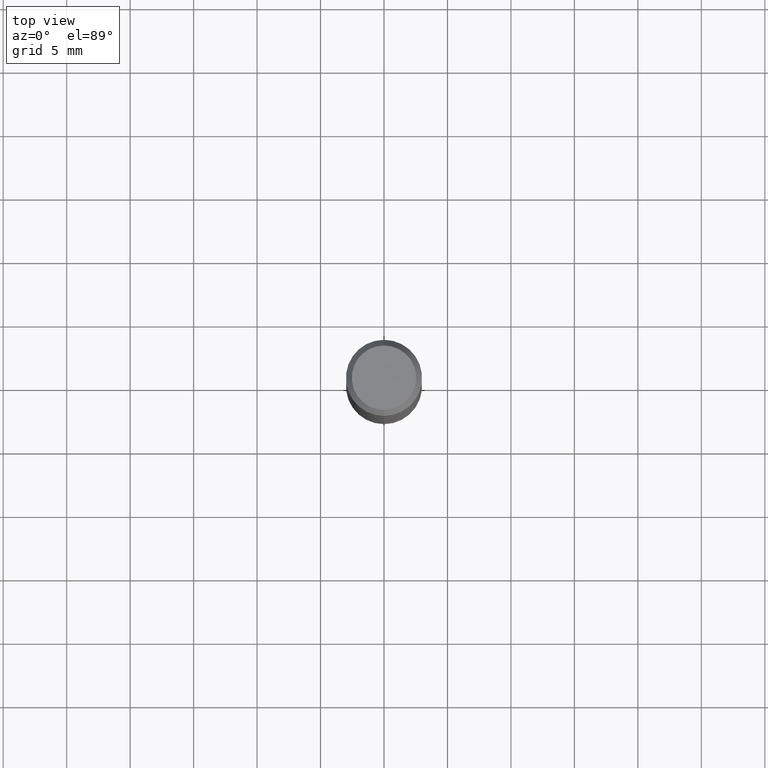
[diagram: clean part render]
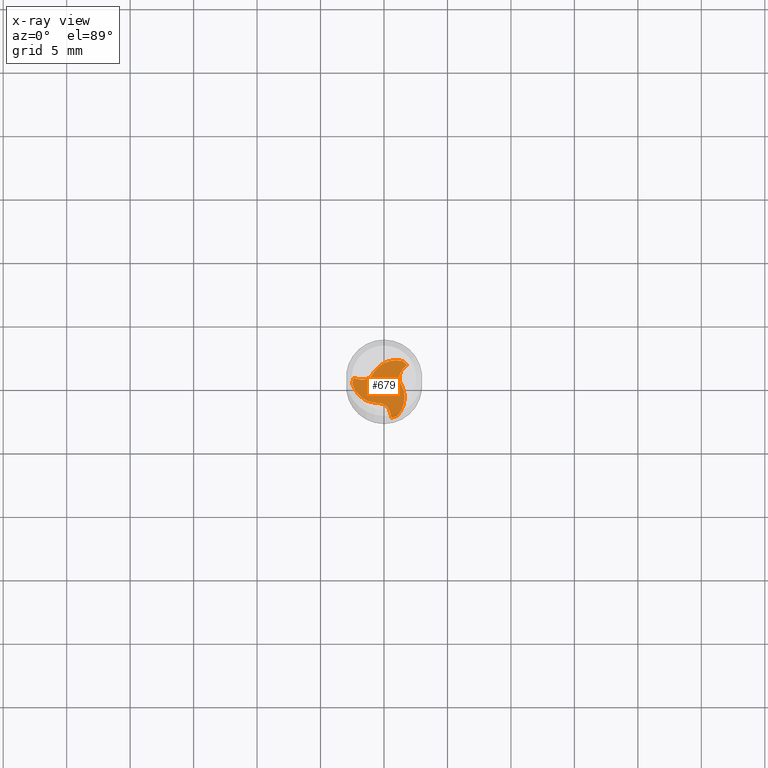
[diagram: x-ray — body ghosted, one internal face saturated and labeled with its STEP entity id]
A machine part, top view, then the same camera in x-ray: the body is ghosted and one INTERNAL B-rep face — a face not visible from any outside direction — is saturated and labeled: STEP entity #679.
In plain terms, the highlighted planar face has unit normal (-0, 0, 1).
Its self-contained STEP definition (entity closure, byte-faithful):
#497=VERTEX_POINT('',#1414);
#509=EDGE_CURVE('',#1341,#765,#1427,.T.);
#527=VERTEX_POINT('',#1447);
#529=EDGE_CURVE('',#837,#1005,#1449,.T.);
#589=VERTEX_POINT('',#1520);
#609=EDGE_CURVE('',#1333,#1107,#1544,.T.);
#633=VERTEX_POINT('',#1570);
#651=EDGE_CURVE('',#841,#837,#1588,.T.);
#659=EDGE_CURVE('',#1073,#1241,#1597,.T.);
#679=ADVANCED_FACE('',(#1618),#1619,.T.);
#721=EDGE_CURVE('',#527,#1333,#1666,.T.);
#749=EDGE_CURVE('',#939,#633,#1700,.T.);
#765=VERTEX_POINT('',#1717);
#813=EDGE_CURVE('',#1245,#1061,#1768,.T.);
#837=VERTEX_POINT('',#1793);
#841=VERTEX_POINT('',#1797);
#881=EDGE_CURVE('',#1253,#841,#1839,.T.);
#913=EDGE_CURVE('',#1005,#1073,#1872,.T.);
#923=EDGE_CURVE('',#497,#589,#1882,.T.);
#939=VERTEX_POINT('',#1899);
#947=EDGE_CURVE('',#633,#1345,#1908,.T.);
#951=EDGE_CURVE('',#1341,#1253,#1913,.T.);
#1005=VERTEX_POINT('',#1971);
#1009=EDGE_CURVE('',#1245,#1309,#1975,.T.);
#1055=EDGE_CURVE('',#1345,#1147,#2025,.T.);
#1061=VERTEX_POINT('',#2031);
#1073=VERTEX_POINT('',#2043);
#1077=EDGE_CURVE('',#1107,#497,#2047,.T.);
#1085=EDGE_CURVE('',#1367,#1061,#2056,.T.);
#1107=VERTEX_POINT('',#2079);
#1147=VERTEX_POINT('',#2124);
#1167=EDGE_CURVE('',#1147,#765,#2146,.T.);
#1185=EDGE_CURVE('',#1309,#939,#2167,.T.);
#1203=EDGE_CURVE('',#589,#1367,#2189,.T.);
#1231=EDGE_CURVE('',#527,#1241,#2218,.T.);
#1241=VERTEX_POINT('',#2228);
#1245=VERTEX_POINT('',#2232);
#1253=VERTEX_POINT('',#2240);
#1309=VERTEX_POINT('',#2301);
#1333=VERTEX_POINT('',#2329);
#1341=VERTEX_POINT('',#2338);
#1345=VERTEX_POINT('',#2342);
#1367=VERTEX_POINT('',#2365);
#1414=CARTESIAN_POINT('',(-0.635572312898288,-1.26213163337543,-42.0));
#1427=CIRCLE('',#3162,2.4999);
#1447=CARTESIAN_POINT('',(-2.488577625498,0.237658182839814,-42.0));
#1449=B_SPLINE_CURVE_WITH_KNOTS('',3,(#3522,#3523,#3524,#3525,#3526,#3527),.UNSPECIFIED.,.F.,.F.,(4,2,4),(0.0,0.024306232711702,0.0486123782174443),.UNSPECIFIED.);
#1520=CARTESIAN_POINT('',(-0.620823734671875,-1.26930903156833,-42.0));
#1544=B_SPLINE_CURVE_WITH_KNOTS('',3,(#4750,#4751,#4752,#4753,#4754,#4755,#4756,#4757,#4758,#4759),.UNSPECIFIED.,.F.,.F.,(4,2,2,2,4),(0.0,0.807465545175308,1.61486374076615,2.22068933445551,2.82649222843999),.UNSPECIFIED.);
#1570=CARTESIAN_POINT('',(1.41082421387237,0.08064404777342,-42.0));
#1588=B_SPLINE_CURVE_WITH_KNOTS('',3,(#4827,#4828,#4829,#4830,#4831,#4832),.UNSPECIFIED.,.F.,.F.,(4,2,4),(0.0,0.024306232711702,0.0486123782174443),.UNSPECIFIED.);
#1597=B_SPLINE_CURVE_WITH_KNOTS('',3,(#4843,#4844,#4845,#4846,#4847,#4848),.UNSPECIFIED.,.F.,.F.,(4,2,4),(0.0,0.254166650335004,0.508333300673312),.UNSPECIFIED.);
#1618=FACE_OUTER_BOUND('',#4900,.T.);
#1619=PLANE('',#4901);
#1666=B_SPLINE_CURVE_WITH_KNOTS('',3,(#5434,#5435,#5436,#5437,#5438,#5439,#5440,#5441,#5442,#5443),.UNSPECIFIED.,.F.,.F.,(4,2,2,2,4),(0.0,0.807465545175308,1.61486374076615,2.22068933445551,2.82649222843999),.UNSPECIFIED.);
#1700=B_SPLINE_CURVE_WITH_KNOTS('',3,(#5879,#5880,#5881,#5882,#5883,#5884),.UNSPECIFIED.,.F.,.F.,(4,2,4),(0.0,0.0243062371417294,0.0486123870777538),.UNSPECIFIED.);
#1717=CARTESIAN_POINT('',(1.81148896562166,1.72279068299982,-42.0));
#1768=CIRCLE('',#6068,2.4999);
#1793=CARTESIAN_POINT('',(-0.77525190097259,1.18148758560056,-42.0));
#1797=CARTESIAN_POINT('',(-0.761543447312375,1.1905198126421,-42.0));
#1839=B_SPLINE_CURVE_WITH_KNOTS('',3,(#6189,#6190,#6191,#6192,#6193,#6194,#6195,#6196,#6197,#6198),.UNSPECIFIED.,.F.,.F.,(4,2,2,2,4),(0.0,0.807465545175761,1.61486374076716,2.22654469282367,2.83820254815217),.UNSPECIFIED.);
#1872=B_SPLINE_CURVE_WITH_KNOTS('',3,(#6772,#6773,#6774,#6775,#6776,#6777,#6778,#6779,#6780,#6781),.UNSPECIFIED.,.F.,.F.,(4,2,2,2,4),(0.0,0.397296314656042,0.794567345117967,1.13575164402061,1.47692801692204),.UNSPECIFIED.);
#1882=B_SPLINE_CURVE_WITH_KNOTS('',3,(#6844,#6845,#6846,#6847,#6848,#6849),.UNSPECIFIED.,.F.,.F.,(4,2,4),(0.0,0.019576354247808,0.0391527295500154),.UNSPECIFIED.);
#1899=CARTESIAN_POINT('',(1.41179212511293,0.0642560651370503,-42.0));
#1908=B_SPLINE_CURVE_WITH_KNOTS('',3,(#7117,#7118,#7119,#7120,#7121,#7122),.UNSPECIFIED.,.F.,.F.,(4,2,4),(0.0,0.0243062371417294,0.0486123870777538),.UNSPECIFIED.);
#1913=B_SPLINE_CURVE_WITH_KNOTS('',3,(#7129,#7130,#7131,#7132,#7133,#7134,#7135,#7136,#7137,#7138),.UNSPECIFIED.,.F.,.F.,(4,2,2,2,4),(0.0,0.807465545175761,1.61486374076716,2.22654469282367,2.83820254815217),.UNSPECIFIED.);
#1971=CARTESIAN_POINT('',(-0.788841999255268,1.17230364128234,-42.0));
#1975=B_SPLINE_CURVE_WITH_KNOTS('',3,(#7349,#7350,#7351,#7352,#7353,#7354,#7355,#7356,#7357,#7358),.UNSPECIFIED.,.F.,.F.,(4,2,2,2,4),(0.0,0.807465545175851,1.61486374076735,2.22654469934735,2.83820256119897),.UNSPECIFIED.);
#2025=B_SPLINE_CURVE_WITH_KNOTS('',3,(#8018,#8019,#8020,#8021,#8022,#8023,#8024,#8025,#8026,#8027),.UNSPECIFIED.,.F.,.F.,(4,2,2,2,4),(0.0,0.397296314656037,0.794567345118008,1.13575164402051,1.47692801692188),.UNSPECIFIED.);
#2031=CARTESIAN_POINT('',(0.586236014070162,-2.43019080440346,-42.0));
#2043=CARTESIAN_POINT('',(-2.00600734270103,0.594332647903058,-42.0));
#2047=B_SPLINE_CURVE_WITH_KNOTS('',3,(#8159,#8160,#8161,#8162,#8163,#8164),.UNSPECIFIED.,.F.,.F.,(4,2,4),(0.0,0.019576354247808,0.0391527295500154),.UNSPECIFIED.);
#2056=B_SPLINE_CURVE_WITH_KNOTS('',3,(#8176,#8177,#8178,#8179,#8180,#8181),.UNSPECIFIED.,.F.,.F.,(4,2,4),(0.0,0.254166650335002,0.50833330067331),.UNSPECIFIED.);
#2079=CARTESIAN_POINT('',(-0.650248677800562,-1.25477587777914,-42.0));
#2124=CARTESIAN_POINT('',(1.51771084273303,1.44008699500569,-42.0));
#2146=B_SPLINE_CURVE_WITH_KNOTS('',3,(#8829,#8830,#8831,#8832,#8833,#8834),.UNSPECIFIED.,.F.,.F.,(4,2,4),(0.0,0.254166650335003,0.50833330067331),.UNSPECIFIED.);
#2167=B_SPLINE_CURVE_WITH_KNOTS('',3,(#8873,#8874,#8875,#8876,#8877,#8878,#8879,#8880,#8881,#8882),.UNSPECIFIED.,.F.,.F.,(4,2,2,2,4),(0.0,0.807465545175851,1.61486374076735,2.22654469934735,2.83820256119897),.UNSPECIFIED.);
#2189=B_SPLINE_CURVE_WITH_KNOTS('',3,(#8926,#8927,#8928,#8929,#8930,#8931,#8932,#8933,#8934,#8935),.UNSPECIFIED.,.F.,.F.,(4,2,2,2,4),(0.0,0.397296314656038,0.794567345117957,1.1357516440206,1.47692801692203),.UNSPECIFIED.);
#2218=CIRCLE('',#9036,2.4999);
#2228=CARTESIAN_POINT('',(-2.39772497969182,0.70740012140364,-42.0));
#2232=CARTESIAN_POINT('',(1.03847078899248,-2.27400053439073,-42.0));
#2240=CARTESIAN_POINT('',(-0.46893575449294,1.53439481779291,-42.0));
#2301=CARTESIAN_POINT('',(1.56329276888621,-0.361087132745361,-42.0));
#2329=CARTESIAN_POINT('',(-1.09435701443387,-1.17330768501924,-42.0));
#2338=CARTESIAN_POINT('',(1.45010683650552,2.03634235155092,-42.0));
#2342=CARTESIAN_POINT('',(1.40966573392714,0.0970053902859922,-42.0));
#2365=CARTESIAN_POINT('',(0.488296499968004,-2.03441964290874,-42.0));
#3162=AXIS2_PLACEMENT_3D('',#10412,#10413,#10414);
#3522=CARTESIAN_POINT('',(-0.748256753437624,1.19905708841931,-42.0));
#3523=CARTESIAN_POINT('',(-0.755097558608726,1.19471577000545,-42.0));
#3524=CARTESIAN_POINT('',(-0.761900635847834,1.19031528536829,-41.9999999998275));
#3525=CARTESIAN_POINT('',(-0.775429779106701,1.18139698999794,-41.9999999998275));
#3526=CARTESIAN_POINT('',(-0.782155674391692,1.17687929241641,-41.9999998613644));
#3527=CARTESIAN_POINT('',(-0.788842064316526,1.17230359745755,-41.9999998613644));
#4750=CARTESIAN_POINT('',(-2.54774651610612,0.514798606097843,-42.0));
#4751=CARTESIAN_POINT('',(-2.50972473171346,0.2483425013431,-42.0));
#4752=CARTESIAN_POINT('',(-2.42002316355332,-0.00813951164587484,-42.0));
#4753=CARTESIAN_POINT('',(-2.14736194840242,-0.472261351143784,-42.0));
#4754=CARTESIAN_POINT('',(-1.96701747967148,-0.675466802954474,-42.0));
#4755=CARTESIAN_POINT('',(-1.5920660861525,-0.960636911685085,-42.0));
#4756=CARTESIAN_POINT('',(-1.41427876936158,-1.05866965069274,-42.0));
#4757=CARTESIAN_POINT('',(-1.03595590483123,-1.20004596395665,-42.0));
#4758=CARTESIAN_POINT('',(-0.837456117711269,-1.24263117360158,-42.0));
#4759=CARTESIAN_POINT('',(-0.635949108051166,-1.25575713939411,-42.0));
#4827=CARTESIAN_POINT('',(-0.748256753437624,1.19905708841931,-42.0));
#4828=CARTESIAN_POINT('',(-0.755097558608726,1.19471577000545,-42.0));
#4829=CARTESIAN_POINT('',(-0.761900635847834,1.19031528536829,-41.9999999998275));
#4830=CARTESIAN_POINT('',(-0.775429779106701,1.18139698999794,-41.9999999998275));
#4831=CARTESIAN_POINT('',(-0.782155674391692,1.17687929241641,-41.9999998613644));
#4832=CARTESIAN_POINT('',(-0.788842064316526,1.17230359745755,-41.9999998613644));
#4843=CARTESIAN_POINT('',(-2.00600734272878,0.59433264780694,-42.0));
#4844=CARTESIAN_POINT('',(-2.08740650517341,0.617827974345354,-42.0));
#4845=CARTESIAN_POINT('',(-2.16880564053943,0.641323394697379,-42.0));
#4846=CARTESIAN_POINT('',(-2.33160385711525,0.688314423026688,-42.0));
#4847=CARTESIAN_POINT('',(-2.41300293832516,0.711810031004008,-42.0));
#4848=CARTESIAN_POINT('',(-2.49440199245651,0.735305732792692,-42.0));
#4900=EDGE_LOOP('',(#10650,#10651,#10652,#10653,#10654,#10655,#10656,#10657,#10658,#10659,#10660,#10661,#10662,#10663,#10664,#10665,#10666,#10667,#10668,#10669,#10670));
#4901=AXIS2_PLACEMENT_3D('',#10671,#10672,#10673);
#5434=CARTESIAN_POINT('',(-2.54774651610612,0.514798606097843,-42.0));
#5435=CARTESIAN_POINT('',(-2.50972473171346,0.2483425013431,-42.0));
#5436=CARTESIAN_POINT('',(-2.42002316355332,-0.00813951164587484,-42.0));
#5437=CARTESIAN_POINT('',(-2.14736194840242,-0.472261351143784,-42.0));
#5438=CARTESIAN_POINT('',(-1.96701747967148,-0.675466802954474,-42.0));
#5439=CARTESIAN_POINT('',(-1.5920660861525,-0.960636911685085,-42.0));
#5440=CARTESIAN_POINT('',(-1.41427876936158,-1.05866965069274,-42.0));
#5441=CARTESIAN_POINT('',(-1.03595590483123,-1.20004596395665,-42.0));
#5442=CARTESIAN_POINT('',(-0.837456117711269,-1.24263117360158,-42.0));
#5443=CARTESIAN_POINT('',(-0.635949108051166,-1.25575713939411,-42.0));
#5879=CARTESIAN_POINT('',(1.41254227624876,0.0484808039685326,-42.0));
#5880=CARTESIAN_POINT('',(1.41220298679126,0.0565757757134993,-42.0));
#5881=CARTESIAN_POINT('',(1.41179359388977,0.0646676572218499,-41.9999999998275));
#5882=CARTESIAN_POINT('',(1.41083469504633,0.0808433896118939,-41.9999999998275));
#5883=CARTESIAN_POINT('',(1.41028520172921,0.0889270360568395,-41.9999998613644));
#5884=CARTESIAN_POINT('',(1.40966572850439,0.0970054685430942,-41.9999998613644));
#6068=AXIS2_PLACEMENT_3D('',#10806,#10807,#10808);
#6189=CARTESIAN_POINT('',(1.7197019287666,1.94901390230228,-42.0));
#6190=CARTESIAN_POINT('',(1.46993328085907,2.04931412349845,-42.0));
#6191=CARTESIAN_POINT('',(1.2029625579166,2.09987129320697,-42.0));
#6192=CARTESIAN_POINT('',(0.664690646884403,2.09580067400837,-42.0));
#6193=CARTESIAN_POINT('',(0.398537329063209,2.04122050856056,-42.0));
#6194=CARTESIAN_POINT('',(-0.0377029266556448,1.85833350854416,-42.0));
#6195=CARTESIAN_POINT('',(-0.21304380634267,1.75210906687287,-42.0));
#6196=CARTESIAN_POINT('',(-0.526920008534517,1.49179114042063,-42.0));
#6197=CARTESIAN_POINT('',(-0.663735636809063,1.33912689002111,-42.0));
#6198=CARTESIAN_POINT('',(-0.775982843442204,1.168921276501,-42.0));
#6772=CARTESIAN_POINT('',(-0.788841999347283,1.17230364132155,-42.0));
#6773=CARTESIAN_POINT('',(-0.840815256975035,1.05049624049581,-42.0));
#6774=CARTESIAN_POINT('',(-0.916083796422409,0.940003677127244,-42.0));
#6775=CARTESIAN_POINT('',(-1.10473103024615,0.754098565398904,-42.0));
#6776=CARTESIAN_POINT('',(-1.21630518059574,0.680459740210508,-42.0));
#6777=CARTESIAN_POINT('',(-1.444100130893,0.587187176398069,-42.0));
#6778=CARTESIAN_POINT('',(-1.55583486709234,0.562054481898215,-42.0));
#6779=CARTESIAN_POINT('',(-1.78295773809718,0.549815276250761,-42.0));
#6780=CARTESIAN_POINT('',(-1.89674322455196,0.562794287348618,-42.0));
#6781=CARTESIAN_POINT('',(-2.00600734270104,0.594332647903028,-42.0));
#6844=CARTESIAN_POINT('',(-0.655887656234082,-1.25189220711168,-42.0));
#6845=CARTESIAN_POINT('',(-0.650084525154875,-1.25487636291514,-42.0));
#6846=CARTESIAN_POINT('',(-0.644260648515477,-1.25782000251376,-41.9999999999093));
#6847=CARTESIAN_POINT('',(-0.632572248090542,-1.26362582265972,-41.9999999999093));
#6848=CARTESIAN_POINT('',(-0.626707866517414,-1.26648793245932,-42.0));
#6849=CARTESIAN_POINT('',(-0.620823734671825,-1.26930903156836,-42.0));
#7117=CARTESIAN_POINT('',(1.41254227624876,0.0484808039685326,-42.0));
#7118=CARTESIAN_POINT('',(1.41220298679126,0.0565757757134993,-42.0));
#7119=CARTESIAN_POINT('',(1.41179359388977,0.0646676572218499,-41.9999999998275));
#7120=CARTESIAN_POINT('',(1.41083469504633,0.0808433896118939,-41.9999999998275));
#7121=CARTESIAN_POINT('',(1.41028520172921,0.0889270360568395,-41.9999998613644));
#7122=CARTESIAN_POINT('',(1.40966572850439,0.0970054685430942,-41.9999998613644));
#7129=CARTESIAN_POINT('',(1.7197019287666,1.94901390230228,-42.0));
#7130=CARTESIAN_POINT('',(1.46993328085907,2.04931412349845,-42.0));
#7131=CARTESIAN_POINT('',(1.2029625579166,2.09987129320697,-42.0));
#7132=CARTESIAN_POINT('',(0.664690646884403,2.09580067400837,-42.0));
#7133=CARTESIAN_POINT('',(0.398537329063209,2.04122050856056,-42.0));
#7134=CARTESIAN_POINT('',(-0.0377029266556448,1.85833350854416,-42.0));
#7135=CARTESIAN_POINT('',(-0.21304380634267,1.75210906687287,-42.0));
#7136=CARTESIAN_POINT('',(-0.526920008534517,1.49179114042063,-42.0));
#7137=CARTESIAN_POINT('',(-0.663735636809063,1.33912689002111,-42.0));
#7138=CARTESIAN_POINT('',(-0.775982843442204,1.168921276501,-42.0));
#7349=CARTESIAN_POINT('',(0.828044587339525,-2.46381250840012,-42.0));
#7350=CARTESIAN_POINT('',(1.03979145085439,-2.29765662484137,-42.0));
#7351=CARTESIAN_POINT('',(1.21706060563662,-2.09173178156075,-42.0));
#7352=CARTESIAN_POINT('',(1.48267130151758,-1.62353932286402,-42.0));
#7353=CARTESIAN_POINT('',(1.56848015060763,-1.36575370560543,-42.0));
#7354=CARTESIAN_POINT('',(1.62821549070554,-0.896515059834198,-42.0));
#7355=CARTESIAN_POINT('',(1.62389286519058,-0.691553180664857,-42.0));
#7356=CARTESIAN_POINT('',(1.55538902692592,-0.289569448625262,-42.0));
#7357=CARTESIAN_POINT('',(1.49158572036236,-0.0947515119052514,-42.0));
#7358=CARTESIAN_POINT('',(1.40030693638586,0.0875602286741563,-42.0));
#8018=CARTESIAN_POINT('',(1.40966573400711,0.097005390346083,-42.0));
#8019=CARTESIAN_POINT('',(1.33016405933694,0.202919252182019,-42.0));
#8020=CARTESIAN_POINT('',(1.27210896225418,0.323350001133479,-42.0));
#8021=CARTESIAN_POINT('',(1.20543402971592,0.579675853842687,-42.0));
#8022=CARTESIAN_POINT('',(1.19744801157273,0.713121315045278,-42.0));
#8023=CARTESIAN_POINT('',(1.23056907698368,0.957033810762657,-42.0));
#8024=CARTESIAN_POINT('',(1.2646708931809,1.06636527804641,-42.0));
#8025=CARTESIAN_POINT('',(1.36763286567053,1.26917905694088,-42.0));
#8026=CARTESIAN_POINT('',(1.43576576222467,1.36123067324372,-42.0));
#8027=CARTESIAN_POINT('',(1.51771084273302,1.4400869950057,-42.0));
#8159=CARTESIAN_POINT('',(-0.655887656234082,-1.25189220711168,-42.0));
#8160=CARTESIAN_POINT('',(-0.650084525154875,-1.25487636291514,-42.0));
#8161=CARTESIAN_POINT('',(-0.644260648515477,-1.25782000251376,-41.9999999999093));
#8162=CARTESIAN_POINT('',(-0.632572248090542,-1.26362582265972,-41.9999999999093));
#8163=CARTESIAN_POINT('',(-0.626707866517414,-1.26648793245932,-42.0));
#8164=CARTESIAN_POINT('',(-0.620823734671825,-1.26930903156836,-42.0));
#8176=CARTESIAN_POINT('',(0.4882965000651,-2.03441964288471,-42.0));
#8177=CARTESIAN_POINT('',(0.508648531634941,-2.11666104867775,-42.0));
#8178=CARTESIAN_POINT('',(0.529000468420505,-2.19890247792682,-42.0));
#8179=CARTESIAN_POINT('',(0.569704152425279,-2.36338538333694,-42.0));
#8180=CARTESIAN_POINT('',(0.590055899644543,-2.44562685949808,-42.0));
#8181=CARTESIAN_POINT('',(0.610407552081477,-2.5278683591142,-42.0));
#8829=CARTESIAN_POINT('',(1.51771084266367,1.44008699507777,-42.0));
#8830=CARTESIAN_POINT('',(1.57875797353846,1.49883307433239,-42.0));
#8831=CARTESIAN_POINT('',(1.63980517211892,1.55757908322944,-42.0));
#8832=CARTESIAN_POINT('',(1.76189970468996,1.67507096031025,-42.0));
#8833=CARTESIAN_POINT('',(1.82294703868063,1.73381682849409,-42.0));
#8834=CARTESIAN_POINT('',(1.88399444037505,1.79256262632152,-42.0));
#8873=CARTESIAN_POINT('',(0.828044587339525,-2.46381250840012,-42.0));
#8874=CARTESIAN_POINT('',(1.03979145085439,-2.29765662484137,-42.0));
#8875=CARTESIAN_POINT('',(1.21706060563662,-2.09173178156075,-42.0));
#8876=CARTESIAN_POINT('',(1.48267130151758,-1.62353932286402,-42.0));
#8877=CARTESIAN_POINT('',(1.56848015060763,-1.36575370560543,-42.0));
#8878=CARTESIAN_POINT('',(1.62821549070554,-0.896515059834198,-42.0));
#8879=CARTESIAN_POINT('',(1.62389286519058,-0.691553180664857,-42.0));
#8880=CARTESIAN_POINT('',(1.55538902692592,-0.289569448625262,-42.0));
#8881=CARTESIAN_POINT('',(1.49158572036236,-0.0947515119052514,-42.0));
#8882=CARTESIAN_POINT('',(1.40030693638586,0.0875602286741563,-42.0));
#8926=CARTESIAN_POINT('',(-0.620823734659822,-1.26930903166763,-42.0));
#8927=CARTESIAN_POINT('',(-0.489348802361901,-1.25341549267783,-42.0));
#8928=CARTESIAN_POINT('',(-0.356025165831774,-1.26335367826072,-42.0));
#8929=CARTESIAN_POINT('',(-0.100702999469779,-1.33377441924157,-42.0));
#8930=CARTESIAN_POINT('',(0.0188571690230085,-1.39358105525578,-42.0));
#8931=CARTESIAN_POINT('',(0.213531053909317,-1.5442209871608,-42.0));
#8932=CARTESIAN_POINT('',(0.291163973911413,-1.62841975994466,-42.0));
#8933=CARTESIAN_POINT('',(0.415324872426673,-1.81899433319158,-42.0));
#8934=CARTESIAN_POINT('',(0.460977462327318,-1.92402496059232,-42.0));
#8935=CARTESIAN_POINT('',(0.488296499968027,-2.03441964290873,-42.0));
#9036=AXIS2_PLACEMENT_3D('',#11261,#11262,#11263);
#10412=CARTESIAN_POINT('',(0.0,0.0,-42.0));
#10413=DIRECTION('',(0.0,0.0,-1.0));
#10414=DIRECTION('',(0.0,1.0,0.0));
#10650=ORIENTED_EDGE('',*,*,#951,.T.);
#10651=ORIENTED_EDGE('',*,*,#881,.T.);
#10652=ORIENTED_EDGE('',*,*,#651,.T.);
#10653=ORIENTED_EDGE('',*,*,#529,.T.);
#10654=ORIENTED_EDGE('',*,*,#913,.T.);
#10655=ORIENTED_EDGE('',*,*,#659,.T.);
#10656=ORIENTED_EDGE('',*,*,#1231,.F.);
#10657=ORIENTED_EDGE('',*,*,#721,.T.);
#10658=ORIENTED_EDGE('',*,*,#609,.T.);
#10659=ORIENTED_EDGE('',*,*,#1077,.T.);
#10660=ORIENTED_EDGE('',*,*,#923,.T.);
#10661=ORIENTED_EDGE('',*,*,#1203,.T.);
#10662=ORIENTED_EDGE('',*,*,#1085,.T.);
#10663=ORIENTED_EDGE('',*,*,#813,.F.);
#10664=ORIENTED_EDGE('',*,*,#1009,.T.);
#10665=ORIENTED_EDGE('',*,*,#1185,.T.);
#10666=ORIENTED_EDGE('',*,*,#749,.T.);
#10667=ORIENTED_EDGE('',*,*,#947,.T.);
#10668=ORIENTED_EDGE('',*,*,#1055,.T.);
#10669=ORIENTED_EDGE('',*,*,#1167,.T.);
#10670=ORIENTED_EDGE('',*,*,#509,.F.);
#10671=CARTESIAN_POINT('',(0.0,1.24995,-42.0));
#10672=DIRECTION('',(-0.0,0.0,1.0));
#10673=DIRECTION('',(0.0,-1.0,0.0));
#10806=CARTESIAN_POINT('',(0.0,0.0,-42.0));
#10807=DIRECTION('',(0.0,0.0,-1.0));
#10808=DIRECTION('',(0.0,1.0,0.0));
#11261=CARTESIAN_POINT('',(0.0,0.0,-42.0));
#11262=DIRECTION('',(0.0,0.0,-1.0));
#11263=DIRECTION('',(0.0,1.0,0.0));